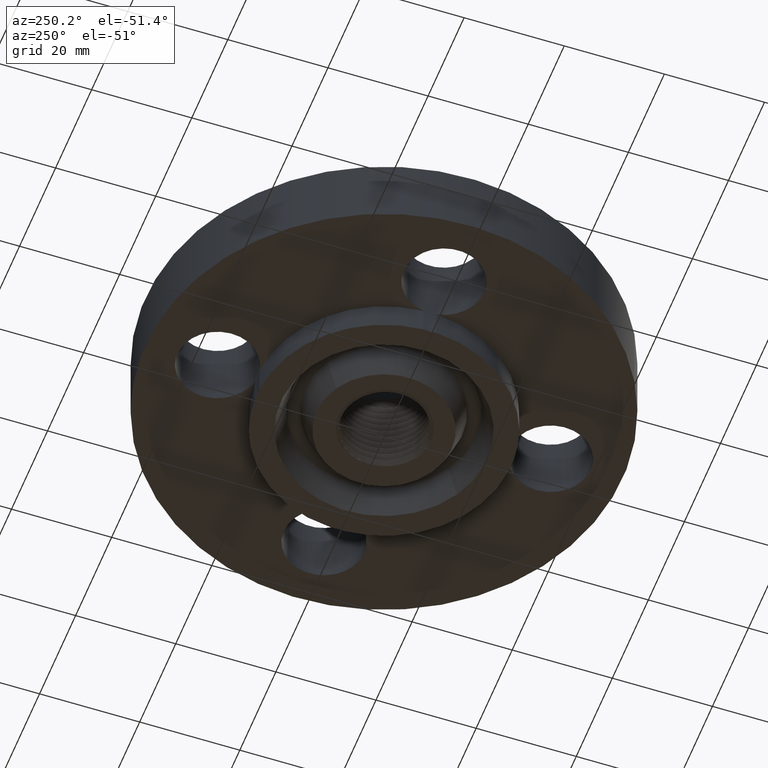
[diagram: clean part render]
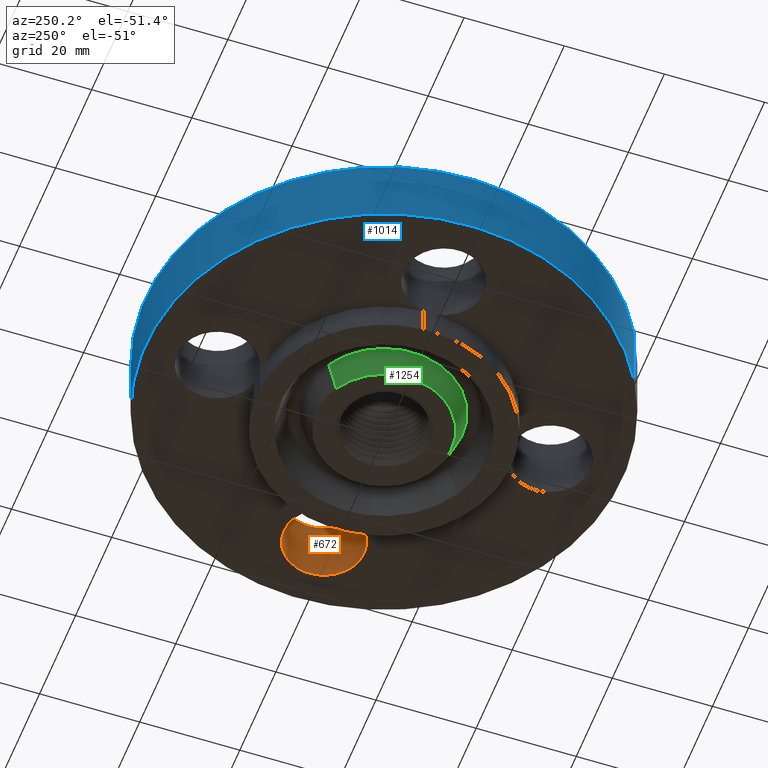
[diagram: same view with three faces highlighted in distinct colors, each labeled with its STEP entity id]
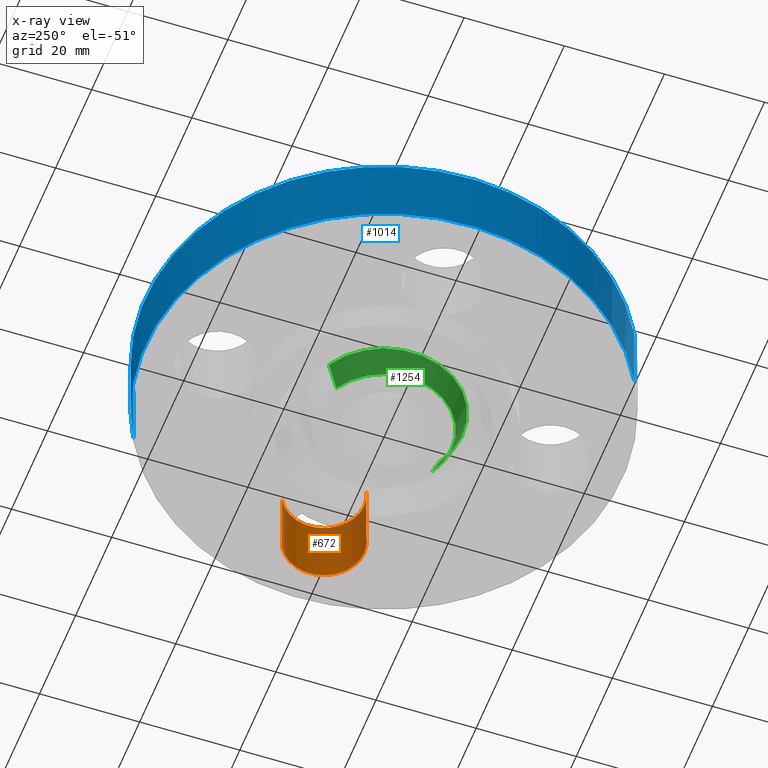
[diagram: x-ray of the same camera — body ghosted, the three highlighted faces saturated]
A machine part, auxiliary view with three faces highlighted in distinct colors.
The next image is the same camera in x-ray (body ghosted, the three faces saturated) — at least one of them is partly hidden behind the body in this view.
Their STEP definitions:

[orange] entity #672 — the highlighted cylindrical surface (partial cylindrical patch) has radius 8.001 mm, axis along (0, -0, -1).
#596=AXIS2_PLACEMENT_3D('Cylinder Axis2P3D',#593,#594,#595) ;
#658=AXIS2_PLACEMENT_3D('Circle Axis2P3D',#656,#657,$) ;
#663=AXIS2_PLACEMENT_3D('Circle Axis2P3D',#661,#662,$) ;
#593=CARTESIAN_POINT('Axis2P3D Location',(1.31000000001,8.02143653445E-017,0.556062992128)) ;
#598=CARTESIAN_POINT('Line Origine',(1.15898095534,-0.276438506997,0.280000000001)) ;
#602=CARTESIAN_POINT('Vertex',(1.15898095534,-0.276438506997,-6.99353086378E-017)) ;
#604=CARTESIAN_POINT('Vertex',(1.15898095534,-0.276438506997,0.560000000002)) ;
#630=CARTESIAN_POINT('Vertex',(1.46101904467,0.276438506997,0.)) ;
#633=CARTESIAN_POINT('Line Origine',(1.46101904467,0.276438506997,0.280000000001)) ;
#637=CARTESIAN_POINT('Vertex',(1.46101904467,0.276438506997,0.560000000002)) ;
#656=CARTESIAN_POINT('Axis2P3D Location',(1.31000000001,8.02143653445E-017,0.)) ;
#661=CARTESIAN_POINT('Axis2P3D Location',(1.31000000001,8.02143653445E-017,0.560000000002)) ;
#594=DIRECTION('Axis2P3D Direction',(0.,-0.,-0.0393700787402)) ;
#595=DIRECTION('Axis2P3D XDirection',(0.0188750212049,0.0345504945626,-0.)) ;
#599=DIRECTION('Vector Direction',(0.,0.,-0.0393700787402)) ;
#634=DIRECTION('Vector Direction',(0.,0.,-0.0393700787402)) ;
#657=DIRECTION('Axis2P3D Direction',(0.,-0.,-0.0393700787402)) ;
#662=DIRECTION('Axis2P3D Direction',(0.,-0.,-0.0393700787402)) ;
#600=VECTOR('Line Direction',#599,0.0393700787402) ;
#635=VECTOR('Line Direction',#634,0.0393700787402) ;
#667=ORIENTED_EDGE('',*,*,#639,.F.) ;
#668=ORIENTED_EDGE('',*,*,#660,.T.) ;
#669=ORIENTED_EDGE('',*,*,#606,.T.) ;
#670=ORIENTED_EDGE('',*,*,#665,.F.) ;
#672=ADVANCED_FACE('PartBody',(#671),#597,.F.) ;
#659=CIRCLE('generated circle',#658,0.315000000001) ;
#664=CIRCLE('generated circle',#663,0.315000000001) ;
#597=CYLINDRICAL_SURFACE('generated cylinder',#596,0.315000000001) ;
#606=EDGE_CURVE('',#603,#605,#601,.F.) ;
#639=EDGE_CURVE('',#631,#638,#636,.F.) ;
#660=EDGE_CURVE('',#631,#603,#659,.T.) ;
#665=EDGE_CURVE('',#638,#605,#664,.T.) ;
#666=EDGE_LOOP('',(#667,#668,#669,#670)) ;
#671=FACE_OUTER_BOUND('',#666,.T.) ;
#601=LINE('Line',#598,#600) ;
#636=LINE('Line',#633,#635) ;
#603=VERTEX_POINT('',#602) ;
#605=VERTEX_POINT('',#604) ;
#631=VERTEX_POINT('',#630) ;
#638=VERTEX_POINT('',#637) ;

[blue] entity #1014 — the highlighted cylindrical surface (partial cylindrical patch) has radius 47.625 mm, axis along (0, 0, -1).
#680=AXIS2_PLACEMENT_3D('Circle Axis2P3D',#678,#679,$) ;
#975=AXIS2_PLACEMENT_3D('Cylinder Axis2P3D',#972,#973,#974) ;
#1005=AXIS2_PLACEMENT_3D('Circle Axis2P3D',#1003,#1004,$) ;
#678=CARTESIAN_POINT('Axis2P3D Location',(0.,0.,0.)) ;
#682=CARTESIAN_POINT('Vertex',(-0.898922884886,-1.64546730355,1.39870617276E-016)) ;
#684=CARTESIAN_POINT('Vertex',(0.898922884886,1.64546730355,1.39870617276E-016)) ;
#972=CARTESIAN_POINT('Axis2P3D Location',(0.,0.,0.330625000001)) ;
#977=CARTESIAN_POINT('Line Origine',(0.898922884886,1.64546730355,0.280000000001)) ;
#981=CARTESIAN_POINT('Vertex',(0.898922884886,1.64546730355,0.560000000002)) ;
#988=CARTESIAN_POINT('Vertex',(-0.898922884886,-1.64546730355,0.560000000002)) ;
#991=CARTESIAN_POINT('Line Origine',(-0.898922884886,-1.64546730355,0.280000000001)) ;
#1003=CARTESIAN_POINT('Axis2P3D Location',(0.,0.,0.560000000002)) ;
#679=DIRECTION('Axis2P3D Direction',(0.,0.,-0.0393700787402)) ;
#973=DIRECTION('Axis2P3D Direction',(0.,0.,-0.0393700787402)) ;
#974=DIRECTION('Axis2P3D XDirection',(-0.0188750212049,-0.0345504945626,0.)) ;
#978=DIRECTION('Vector Direction',(0.,0.,-0.0393700787402)) ;
#992=DIRECTION('Vector Direction',(0.,0.,-0.0393700787402)) ;
#1004=DIRECTION('Axis2P3D Direction',(0.,0.,-0.0393700787402)) ;
#979=VECTOR('Line Direction',#978,0.0393700787402) ;
#993=VECTOR('Line Direction',#992,0.0393700787402) ;
#1009=ORIENTED_EDGE('',*,*,#686,.F.) ;
#1010=ORIENTED_EDGE('',*,*,#995,.T.) ;
#1011=ORIENTED_EDGE('',*,*,#1007,.T.) ;
#1012=ORIENTED_EDGE('',*,*,#983,.F.) ;
#1014=ADVANCED_FACE('PartBody',(#1013),#976,.T.) ;
#681=CIRCLE('generated circle',#680,1.87500000001) ;
#1006=CIRCLE('generated circle',#1005,1.87500000001) ;
#976=CYLINDRICAL_SURFACE('generated cylinder',#975,1.87500000001) ;
#686=EDGE_CURVE('',#683,#685,#681,.T.) ;
#983=EDGE_CURVE('',#685,#982,#980,.F.) ;
#995=EDGE_CURVE('',#683,#989,#994,.F.) ;
#1007=EDGE_CURVE('',#989,#982,#1006,.T.) ;
#1008=EDGE_LOOP('',(#1009,#1010,#1011,#1012)) ;
#1013=FACE_OUTER_BOUND('',#1008,.T.) ;
#980=LINE('Line',#977,#979) ;
#994=LINE('Line',#991,#993) ;
#683=VERTEX_POINT('',#682) ;
#685=VERTEX_POINT('',#684) ;
#982=VERTEX_POINT('',#981) ;
#989=VERTEX_POINT('',#988) ;

[green] entity #1254 — the highlighted conical surface has half-angle 23 deg.
#178=AXIS2_PLACEMENT_3D('Circle Axis2P3D',#176,#177,$) ;
#1216=AXIS2_PLACEMENT_3D('Circle Axis2P3D',#1214,#1215,$) ;
#1229=AXIS2_PLACEMENT_3D('Cone Axis2P3D',#1226,#1227,#1228) ;
#171=CARTESIAN_POINT('Vertex',(-0.254694817385,0.466215736006,-0.218750000001)) ;
#173=CARTESIAN_POINT('Vertex',(0.254694817385,-0.466215736006,-0.218750000001)) ;
#176=CARTESIAN_POINT('Axis2P3D Location',(2.09805925913E-016,-3.49676543189E-017,-0.218750000001)) ;
#1192=CARTESIAN_POINT('Vertex',(0.295336685454,-0.540610176494,-0.0190396522348)) ;
#1199=CARTESIAN_POINT('Vertex',(-0.295336685454,0.540610176494,-0.0190396522348)) ;
#1214=CARTESIAN_POINT('Axis2P3D Location',(0.,0.,-0.0190396522348)) ;
#1226=CARTESIAN_POINT('Axis2P3D Location',(0.,0.,-0.278750000001)) ;
#1231=CARTESIAN_POINT('Line Origine',(-0.275015751419,0.50341295625,-0.118894826118)) ;
#1236=CARTESIAN_POINT('Line Origine',(0.275015751419,-0.50341295625,-0.118894826118)) ;
#177=DIRECTION('Axis2P3D Direction',(0.,0.,-0.0393700787402)) ;
#1215=DIRECTION('Axis2P3D Direction',(0.,0.,0.0393700787402)) ;
#1227=DIRECTION('Axis2P3D Direction',(0.,0.,0.0393700787402)) ;
#1228=DIRECTION('Axis2P3D XDirection',(-0.0188750212049,0.0345504945626,0.)) ;
#1232=DIRECTION('Vector Direction',(-0.00737505833565,0.0134999537303,0.0362403485611)) ;
#1237=DIRECTION('Vector Direction',(0.00737505833565,-0.0134999537303,0.0362403485611)) ;
#1233=VECTOR('Line Direction',#1232,0.0393700787402) ;
#1238=VECTOR('Line Direction',#1237,0.0393700787402) ;
#1249=ORIENTED_EDGE('',*,*,#1240,.F.) ;
#1250=ORIENTED_EDGE('',*,*,#1218,.F.) ;
#1251=ORIENTED_EDGE('',*,*,#1235,.T.) ;
#1252=ORIENTED_EDGE('',*,*,#180,.F.) ;
#1254=ADVANCED_FACE('PartBody',(#1253),#1230,.T.) ;
#179=CIRCLE('generated circle',#178,0.531250000002) ;
#1217=CIRCLE('generated circle',#1216,0.616022013165) ;
#1230=CONICAL_SURFACE('Cone',#1229,0.505781511029,0.401425727959) ;
#180=EDGE_CURVE('',#174,#172,#179,.T.) ;
#1218=EDGE_CURVE('',#1200,#1193,#1217,.T.) ;
#1235=EDGE_CURVE('',#1200,#172,#1234,.F.) ;
#1240=EDGE_CURVE('',#1193,#174,#1239,.F.) ;
#1248=EDGE_LOOP('',(#1249,#1250,#1251,#1252)) ;
#1253=FACE_OUTER_BOUND('',#1248,.T.) ;
#1234=LINE('Line',#1231,#1233) ;
#1239=LINE('Line',#1236,#1238) ;
#172=VERTEX_POINT('',#171) ;
#174=VERTEX_POINT('',#173) ;
#1193=VERTEX_POINT('',#1192) ;
#1200=VERTEX_POINT('',#1199) ;